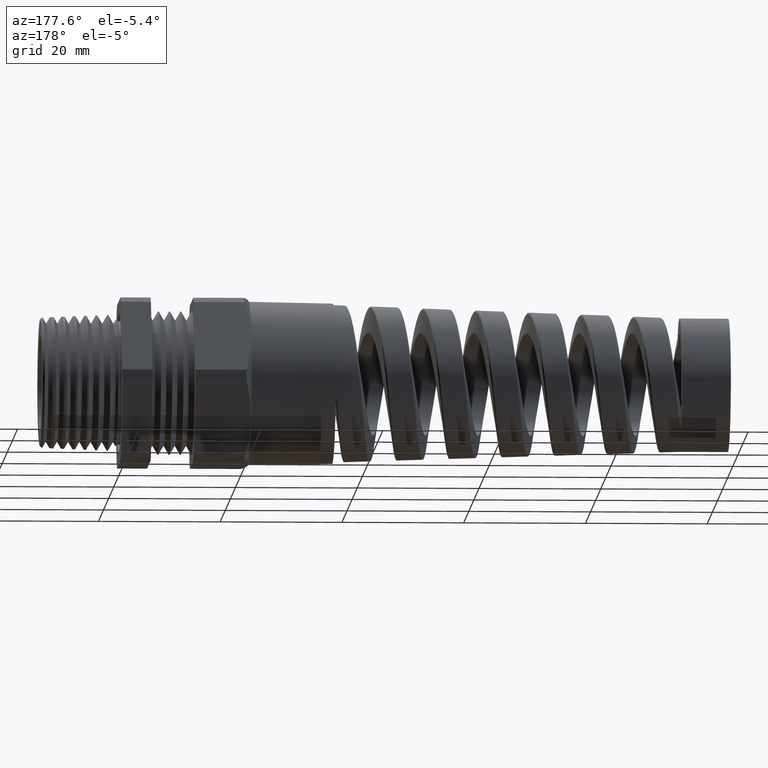
[diagram: clean part render]
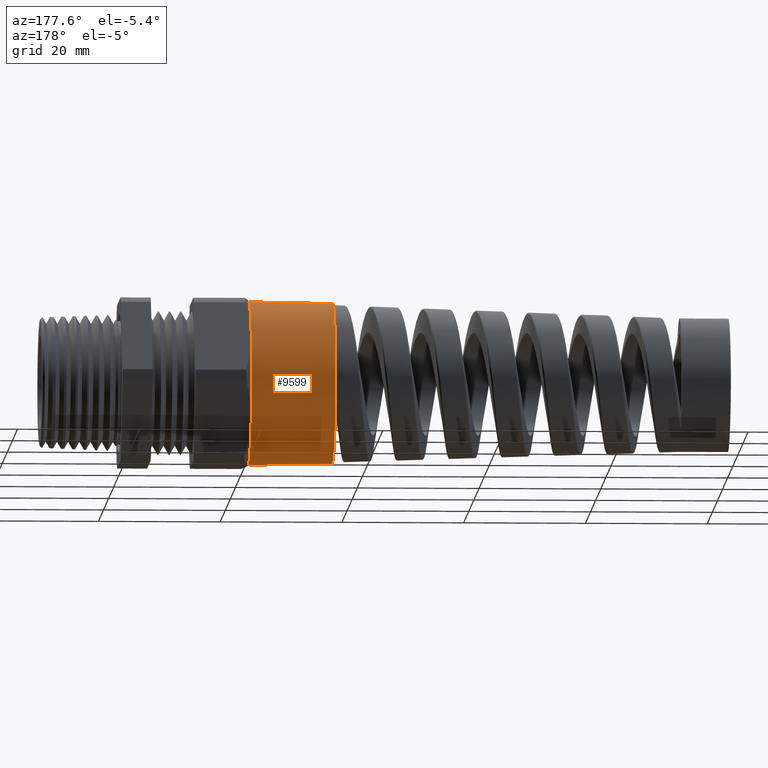
[diagram: same view with one face highlighted and labeled with its STEP entity id]
A machine part, auxiliary view. The second image highlights one B-rep face of the part: STEP entity #9599.
In plain terms, the highlighted conical surface has half-angle 1 deg.
Its self-contained STEP definition (entity closure, byte-faithful):
#1056 = CIRCLE ( 'NONE', #1119, 0.5299999999999999200 ) ;
#1059 = DIRECTION ( 'NONE',  ( 0.0000000000000000000, 0.0000000000000000000, 1.000000000000000000 ) ) ;
#1060 = DIRECTION ( 'NONE',  ( -1.000000000000000000, 0.0000000000000000000, 0.0000000000000000000 ) ) ;
#1061 = CARTESIAN_POINT ( 'NONE',  ( -0.8375000000000000200, 0.0000000000000000000, 0.0000000000000000000 ) ) ;
#1062 = AXIS2_PLACEMENT_3D ( 'NONE', #1061, #1060, #1059 ) ;
#1067 = CIRCLE ( 'NONE', #1062, 0.5299999999999999200 ) ;
#1070 = DIRECTION ( 'NONE',  ( 0.0000000000000000000, 0.0000000000000000000, 1.000000000000000000 ) ) ;
#1071 = DIRECTION ( 'NONE',  ( -1.000000000000000000, 0.0000000000000000000, 0.0000000000000000000 ) ) ;
#1072 = CARTESIAN_POINT ( 'NONE',  ( -0.8375000000000000200, 0.0000000000000000000, 0.0000000000000000000 ) ) ;
#1073 = AXIS2_PLACEMENT_3D ( 'NONE', #1072, #1071, #1070 ) ;
#1078 = CIRCLE ( 'NONE', #1073, 0.5299999999999999200 ) ;
#1116 = DIRECTION ( 'NONE',  ( 0.0000000000000000000, 0.0000000000000000000, 1.000000000000000000 ) ) ;
#1117 = DIRECTION ( 'NONE',  ( -1.000000000000000000, 0.0000000000000000000, 0.0000000000000000000 ) ) ;
#1118 = CARTESIAN_POINT ( 'NONE',  ( -0.8375000000000000200, 0.0000000000000000000, 0.0000000000000000000 ) ) ;
#1119 = AXIS2_PLACEMENT_3D ( 'NONE', #1118, #1117, #1116 ) ;
#1265 = DIRECTION ( 'NONE',  ( 0.0000000000000000000, 0.0000000000000000000, 1.000000000000000000 ) ) ;
#1266 = DIRECTION ( 'NONE',  ( -1.000000000000000000, 0.0000000000000000000, 0.0000000000000000000 ) ) ;
#1267 = CARTESIAN_POINT ( 'NONE',  ( -1.381219999999999900, 0.0000000000000000000, 0.0000000000000000000 ) ) ;
#1268 = AXIS2_PLACEMENT_3D ( 'NONE', #1267, #1266, #1265 ) ;
#1269 = CIRCLE ( 'NONE', #1268, 0.5205093320972294900 ) ;
#2033 = DIRECTION ( 'NONE',  ( 0.0000000000000000000, 0.0000000000000000000, 1.000000000000000000 ) ) ;
#2034 = DIRECTION ( 'NONE',  ( 1.000000000000000000, 0.0000000000000000000, 0.0000000000000000000 ) ) ;
#2035 = CARTESIAN_POINT ( 'NONE',  ( -0.8375000000000000200, 0.0000000000000000000, 0.0000000000000000000 ) ) ;
#2044 = CONICAL_SURFACE ( 'NONE', #2045, 0.5299999999999999200, 0.01745329251994333400 ) ;
#2045 = AXIS2_PLACEMENT_3D ( 'NONE', #2035, #2034, #2033 ) ;
#2047 = FACE_OUTER_BOUND ( 'NONE', #9600, .T. ) ;
#8797 = EDGE_CURVE ( 'NONE', #8813, #8803, #12588, .T. ) ;
#8803 = VERTEX_POINT ( 'NONE', #12573 ) ;
#8813 = VERTEX_POINT ( 'NONE', #12620 ) ;
#8842 = VERTEX_POINT ( 'NONE', #12688 ) ;
#8843 = VERTEX_POINT ( 'NONE', #12687 ) ;
#8847 = EDGE_CURVE ( 'NONE', #8842, #8843, #12680, .T. ) ;
#9166 = VERTEX_POINT ( 'NONE', #13305 ) ;
#9181 = VERTEX_POINT ( 'NONE', #13329 ) ;
#9397 = EDGE_CURVE ( 'NONE', #8843, #9181, #1078, .T. ) ;
#9409 = EDGE_CURVE ( 'NONE', #9166, #8803, #1067, .T. ) ;
#9414 = EDGE_CURVE ( 'NONE', #9181, #9166, #1056, .T. ) ;
#9552 = EDGE_CURVE ( 'NONE', #8842, #8813, #1269, .T. ) ;
#9599 = ADVANCED_FACE ( 'NONE', ( #2047 ), #2044, .T. ) ;
#9600 = EDGE_LOOP ( 'NONE', ( #9601, #9602, #9603, #9604, #9605, #9668 ) ) ;
#9601 = ORIENTED_EDGE ( 'NONE', *, *, #8797, .F. ) ;
#9602 = ORIENTED_EDGE ( 'NONE', *, *, #9552, .F. ) ;
#9603 = ORIENTED_EDGE ( 'NONE', *, *, #8847, .T. ) ;
#9604 = ORIENTED_EDGE ( 'NONE', *, *, #9397, .T. ) ;
#9605 = ORIENTED_EDGE ( 'NONE', *, *, #9414, .T. ) ;
#9668 = ORIENTED_EDGE ( 'NONE', *, *, #9409, .T. ) ;
#12573 = CARTESIAN_POINT ( 'NONE',  ( -0.8375000000000000200, 0.0000000000000000000, -0.5299999999999999200 ) ) ;
#12585 = DIRECTION ( 'NONE',  ( 0.9998476951563912700, -2.137303368083796300E-018, -0.01745240643728355000 ) ) ;
#12586 = VECTOR ( 'NONE', #12585, 39.37007874015748100 ) ;
#12587 = CARTESIAN_POINT ( 'NONE',  ( -0.8375000000000000200, -6.490628035480971200E-017, -0.5299999999999999200 ) ) ;
#12588 = LINE ( 'NONE', #12587, #12586 ) ;
#12620 = CARTESIAN_POINT ( 'NONE',  ( -1.381219999999999900, -6.432514455136479600E-017, -0.5205093320972294900 ) ) ;
#12677 = DIRECTION ( 'NONE',  ( 0.9998476951563912700, 0.0000000000000000000, 0.01745240643728355000 ) ) ;
#12678 = VECTOR ( 'NONE', #12677, 39.37007874015748100 ) ;
#12679 = CARTESIAN_POINT ( 'NONE',  ( -0.8375000000000000200, 0.0000000000000000000, 0.5299999999999999200 ) ) ;
#12680 = LINE ( 'NONE', #12679, #12678 ) ;
#12687 = CARTESIAN_POINT ( 'NONE',  ( -0.8375000000000000200, 0.0000000000000000000, 0.5299999999999999200 ) ) ;
#12688 = CARTESIAN_POINT ( 'NONE',  ( -1.381219999999999900, 0.0000000000000000000, 0.5205093320972294900 ) ) ;
#13305 = CARTESIAN_POINT ( 'NONE',  ( -0.8375000000000000200, 0.4589934640057525300, -0.2649999999999998500 ) ) ;
#13329 = CARTESIAN_POINT ( 'NONE',  ( -0.8375000000000000200, 0.4589934640057524200, 0.2650000000000000700 ) ) ;